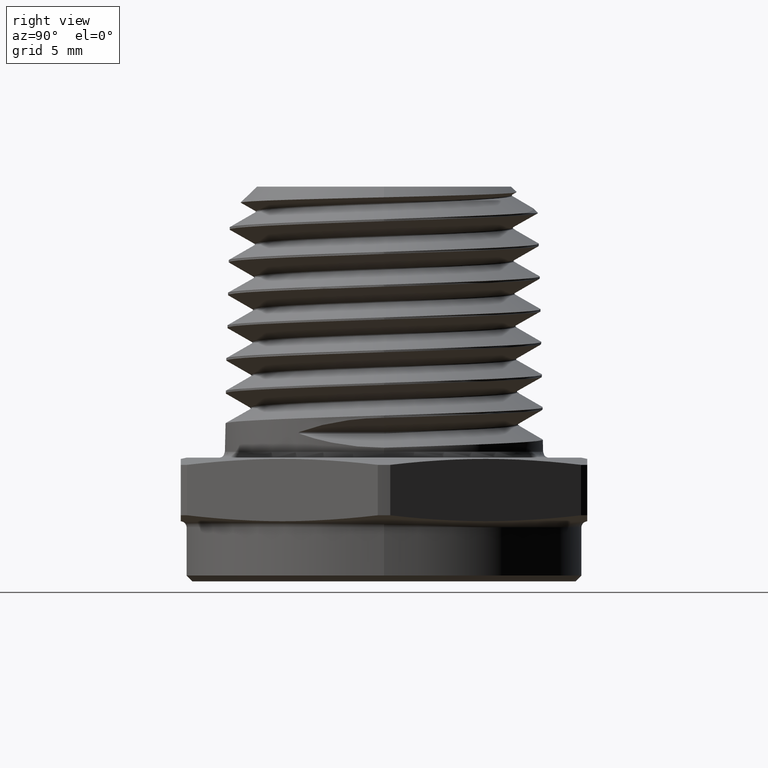
[diagram: clean part render]
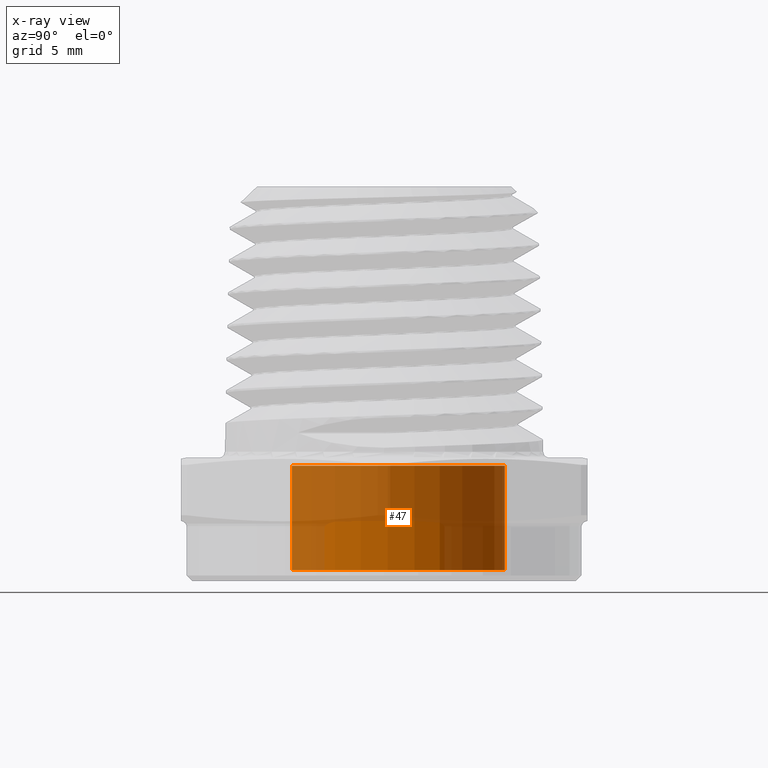
[diagram: x-ray — body ghosted, one internal face saturated and labeled with its STEP entity id]
A machine part, right view, then the same camera in x-ray: the body is ghosted and one INTERNAL B-rep face — a face not visible from any outside direction — is saturated and labeled: STEP entity #47.
In plain terms, the highlighted cylindrical surface (partial cylindrical patch) has radius 5.207 mm, axis along (0, 0, -1).
Its self-contained STEP definition (entity closure, byte-faithful):
#47 = ADVANCED_FACE ( 'NONE', ( #729 ), #734, .T. ) ;
#116 = EDGE_CURVE ( 'NONE', #549, #545, #1293, .T. ) ;
#118 = EDGE_CURVE ( 'NONE', #551, #552, #1303, .T. ) ;
#120 = EDGE_CURVE ( 'NONE', #552, #549, #1304, .T. ) ;
#121 = EDGE_CURVE ( 'NONE', #551, #545, #1309, .T. ) ;
#294 = AXIS2_PLACEMENT_3D ( 'NONE', #5378, #5365, #5372 ) ;
#545 = VERTEX_POINT ( 'NONE', #4079 ) ;
#549 = VERTEX_POINT ( 'NONE', #4085 ) ;
#551 = VERTEX_POINT ( 'NONE', #4087 ) ;
#552 = VERTEX_POINT ( 'NONE', #4088 ) ;
#650 = EDGE_LOOP ( 'NONE', ( #5354, #5355, #5356, #5357 ) ) ;
#729 = FACE_OUTER_BOUND ( 'NONE', #650, .T. ) ;
#734 = CYLINDRICAL_SURFACE ( 'NONE', #294, 0.2050000000000000400 ) ;
#843 = AXIS2_PLACEMENT_3D ( 'NONE', #1697, #1698, #1699 ) ;
#844 = AXIS2_PLACEMENT_3D ( 'NONE', #1702, #1703, #1704 ) ;
#1293 = CIRCLE ( 'NONE', #843, 0.2050000000000000400 ) ;
#1303 = CIRCLE ( 'NONE', #844, 0.2050000000000000400 ) ;
#1304 = LINE ( 'NONE', #1701, #1310 ) ;
#1309 = LINE ( 'NONE', #1706, #1312 ) ;
#1310 = VECTOR ( 'NONE', #1705, 39.37007874015748100 ) ;
#1312 = VECTOR ( 'NONE', #1707, 39.37007874015748100 ) ;
#1697 = CARTESIAN_POINT ( 'NONE',  ( -2.019159664673211200E-017, 5.316369125326775900E-018, 0.009999999999999995000 ) ) ;
#1698 = DIRECTION ( 'NONE',  ( -0.0000000000000000000, -0.0000000000000000000, 1.000000000000000000 ) ) ;
#1699 = DIRECTION ( 'NONE',  ( 1.000000000000000000, 0.0000000000000000000, 0.0000000000000000000 ) ) ;
#1701 = CARTESIAN_POINT ( 'NONE',  ( 0.2049999999999999900, 3.042162850784752100E-017, 0.1968503937007874100 ) ) ;
#1702 = CARTESIAN_POINT ( 'NONE',  ( -2.019159664673211200E-017, 5.316369125326775900E-018, 0.1868503937007873200 ) ) ;
#1703 = DIRECTION ( 'NONE',  ( 0.0000000000000000000, 0.0000000000000000000, -1.000000000000000000 ) ) ;
#1704 = DIRECTION ( 'NONE',  ( 1.000000000000000000, 0.0000000000000000000, 0.0000000000000000000 ) ) ;
#1705 = DIRECTION ( 'NONE',  ( -0.0000000000000000000, -0.0000000000000000000, -1.000000000000000000 ) ) ;
#1706 = CARTESIAN_POINT ( 'NONE',  ( -0.2050000000000000700, 5.316369125326775900E-018, 0.1968503937007874100 ) ) ;
#1707 = DIRECTION ( 'NONE',  ( -0.0000000000000000000, -0.0000000000000000000, -1.000000000000000000 ) ) ;
#4079 = CARTESIAN_POINT ( 'NONE',  ( -0.2050000000000000700, 5.316369125326775900E-018, 0.009999999999999995000 ) ) ;
#4085 = CARTESIAN_POINT ( 'NONE',  ( 0.2049999999999999900, 3.042162850784752100E-017, 0.009999999999999995000 ) ) ;
#4087 = CARTESIAN_POINT ( 'NONE',  ( -0.2050000000000000700, 5.316369125326775900E-018, 0.1868503937007873200 ) ) ;
#4088 = CARTESIAN_POINT ( 'NONE',  ( 0.2049999999999999900, 3.042162850784752100E-017, 0.1868503937007873200 ) ) ;
#5354 = ORIENTED_EDGE ( 'NONE', *, *, #118, .T. ) ;
#5355 = ORIENTED_EDGE ( 'NONE', *, *, #120, .T. ) ;
#5356 = ORIENTED_EDGE ( 'NONE', *, *, #116, .T. ) ;
#5357 = ORIENTED_EDGE ( 'NONE', *, *, #121, .F. ) ;
#5365 = DIRECTION ( 'NONE',  ( -0.0000000000000000000, -0.0000000000000000000, -1.000000000000000000 ) ) ;
#5372 = DIRECTION ( 'NONE',  ( -1.000000000000000000, 0.0000000000000000000, 0.0000000000000000000 ) ) ;
#5378 = CARTESIAN_POINT ( 'NONE',  ( -2.019159664673211200E-017, 5.316369125326775900E-018, 0.1968503937007874100 ) ) ;